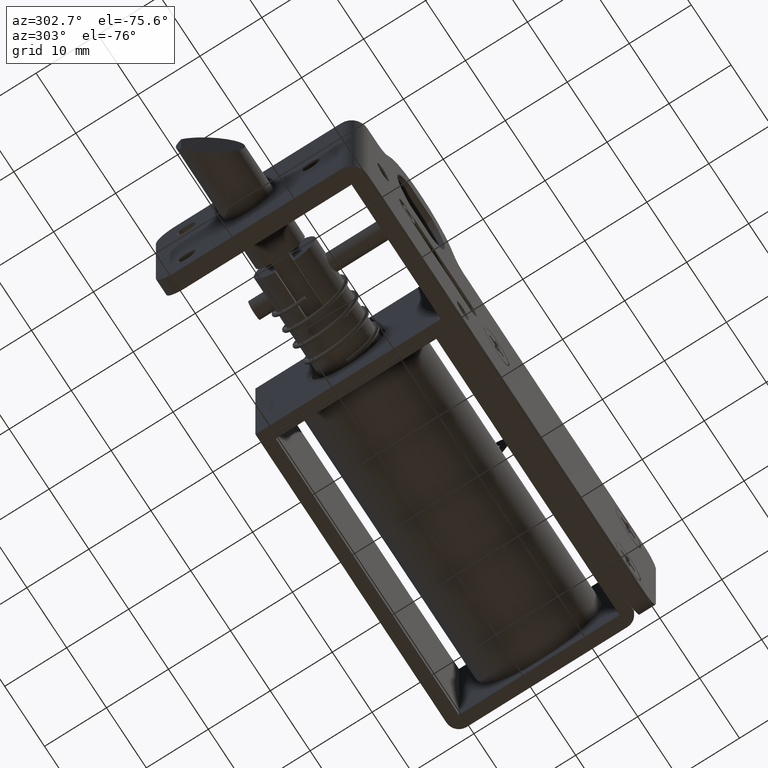
[diagram: clean part render]
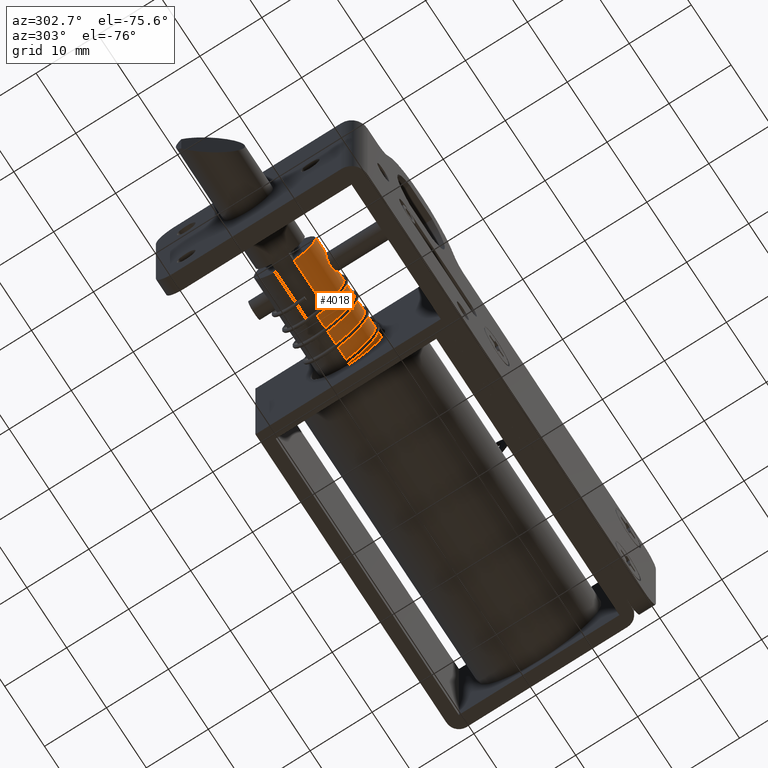
[diagram: same view with one face highlighted and labeled with its STEP entity id]
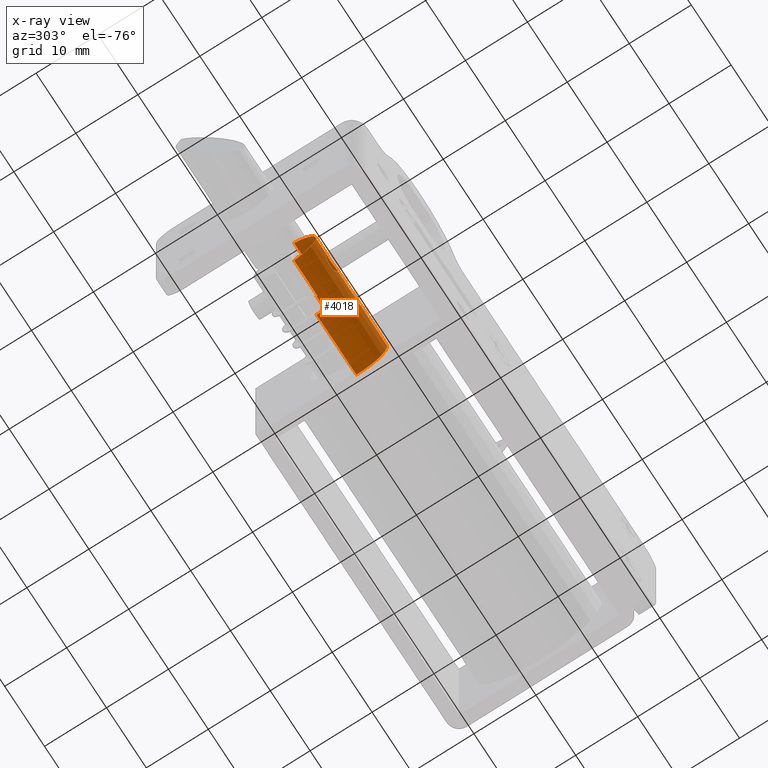
[diagram: x-ray of the same camera — body ghosted, the highlighted face saturated]
A machine part, auxiliary view. The second image highlights one B-rep face of the part: STEP entity #4018.
The next image is the same camera in x-ray: the body ghosted, the highlighted face saturated — about 0% of this face is hidden behind the body in this view.
In plain terms, the highlighted cylindrical surface (partial cylindrical patch) has radius 5 mm, axis along (-1, 0, 0).
Its self-contained STEP definition (entity closure, byte-faithful):
#37 = VERTEX_POINT ( 'NONE', #2849 ) ;
#132 = CARTESIAN_POINT ( 'NONE',  ( -2.802324645010769700, 12.72717619267082000, -9.509846374194445700 ) ) ;
#178 = CARTESIAN_POINT ( 'NONE',  ( -2.514256680765015500, 12.70647913015931600, -9.577431668028785000 ) ) ;
#205 = CARTESIAN_POINT ( 'NONE',  ( -1.690732575779523700, 12.55440806401950100, -11.75817743130402300 ) ) ;
#279 = CARTESIAN_POINT ( 'NONE',  ( -3.991137390126485500, 12.62888239010720600, -12.13014415608356500 ) ) ;
#310 = CARTESIAN_POINT ( 'NONE',  ( -3.992151302994307600, 12.62866936550598500, -9.870801423581568200 ) ) ;
#379 = FACE_OUTER_BOUND ( 'NONE', #7382, .T. ) ;
#390 = AXIS2_PLACEMENT_3D ( 'NONE', #5783, #2133, #6370 ) ;
#589 = FACE_BOUND ( 'NONE', #2037, .T. ) ;
#614 = VERTEX_POINT ( 'NONE', #3140 ) ;
#636 = ORIENTED_EDGE ( 'NONE', *, *, #7476, .F. ) ;
#674 = VECTOR ( 'NONE', #3603, 1000.000000000000000 ) ;
#713 = CIRCLE ( 'NONE', #390, 4.999999999999911200 ) ;
#799 = CARTESIAN_POINT ( 'NONE',  ( -2.246976668754406200, 12.67189170738311800, -9.699028046313298300 ) ) ;
#825 = CARTESIAN_POINT ( 'NONE',  ( -2.009140208749609500, 12.62893940461908400, -12.13039042158237800 ) ) ;
#875 = CARTESIAN_POINT ( 'NONE',  ( 11.00000000000019900, 17.50000000000000000, -6.000000000000089700 ) ) ;
#878 = CARTESIAN_POINT ( 'NONE',  ( -2.999999999999800200, 12.73030399291536900, -12.49999999999999800 ) ) ;
#905 = CARTESIAN_POINT ( 'NONE',  ( -4.308858590989895100, 12.55451991681598400, -11.75902394075570400 ) ) ;
#928 = CARTESIAN_POINT ( 'NONE',  ( -3.753093091205181400, 12.67188069730730100, -9.699068882200260000 ) ) ;
#993 = CARTESIAN_POINT ( 'NONE',  ( -2.999999999999800200, 12.73030399291536900, -12.49999999999999800 ) ) ;
#1171 = CARTESIAN_POINT ( 'NONE',  ( -6.999999999999800200, 17.50000000000000000, -11.00000000000000000 ) ) ;
#1204 = EDGE_CURVE ( 'NONE', #3364, #614, #3137, .T. ) ;
#1256 = LINE ( 'NONE', #2981, #674 ) ;
#1273 = CARTESIAN_POINT ( 'NONE',  ( 0.0000000000000000000, 16.00000000000000000, -15.76969600708459900 ) ) ;
#1397 = DIRECTION ( 'NONE',  ( -1.000000000000000000, 0.0000000000000000000, 0.0000000000000000000 ) ) ;
#1422 = CARTESIAN_POINT ( 'NONE',  ( -2.007860777104677900, 12.62867186551743800, -9.870790526265121700 ) ) ;
#1449 = CARTESIAN_POINT ( 'NONE',  ( -2.246337455217887900, 12.67178746337139600, -12.30057831424408300 ) ) ;
#1506 = CARTESIAN_POINT ( 'NONE',  ( -3.196470144910955800, 12.73030399291537100, -12.49999999999999600 ) ) ;
#1533 = CARTESIAN_POINT ( 'NONE',  ( -4.451482663955900400, 12.51437437587304300, -11.39091285004997400 ) ) ;
#1562 = CARTESIAN_POINT ( 'NONE',  ( -3.486443712107119900, 12.70640327214418600, -9.577689437620643200 ) ) ;
#1638 = CARTESIAN_POINT ( 'NONE',  ( 1.000000000000000000, 17.50000000000000000, -11.00000000000000000 ) ) ;
#1801 = DIRECTION ( 'NONE',  ( -1.000000000000000000, 0.0000000000000000000, 0.0000000000000000000 ) ) ;
#1826 = EDGE_CURVE ( 'NONE', #6294, #6401, #2491, .T. ) ;
#1870 = CIRCLE ( 'NONE', #3108, 4.999999999999911200 ) ;
#1922 = VERTEX_POINT ( 'NONE', #875 ) ;
#1990 = CARTESIAN_POINT ( 'NONE',  ( 11.00000000000019900, 17.50000000000000000, -15.99999999999990900 ) ) ;
#2032 = CARTESIAN_POINT ( 'NONE',  ( -1.690075773546870100, 12.55422281478710500, -10.24353476257498000 ) ) ;
#2037 = EDGE_LOOP ( 'NONE', ( #2313, #3725 ) ) ;
#2055 = CARTESIAN_POINT ( 'NONE',  ( -2.514925182668492600, 12.70654134009680900, -12.42277230654614300 ) ) ;
#2116 = LINE ( 'NONE', #5515, #3733 ) ;
#2133 = DIRECTION ( 'NONE',  ( -1.000000000000000000, -1.445602896647241800E-016, -0.0000000000000000000 ) ) ;
#2142 = CARTESIAN_POINT ( 'NONE',  ( -4.499994372585138800, 12.50000168822448500, -11.09894250604208600 ) ) ;
#2169 = CARTESIAN_POINT ( 'NONE',  ( -3.197779399950831300, 12.72717613401718900, -9.509845659352906800 ) ) ;
#2221 = CARTESIAN_POINT ( 'NONE',  ( -6.999999999999800200, 16.00000000000000000, -15.76969600708459900 ) ) ;
#2238 = VERTEX_POINT ( 'NONE', #7341 ) ;
#2243 = DIRECTION ( 'NONE',  ( -1.301042606982628500E-016, 1.000000000000000000, -6.938893903907351400E-015 ) ) ;
#2313 = ORIENTED_EDGE ( 'NONE', *, *, #1826, .T. ) ;
#2393 = CIRCLE ( 'NONE', #4872, 4.999999999999910300 ) ;
#2459 = DIRECTION ( 'NONE',  ( -1.000000000000000000, 0.0000000000000000000, 0.0000000000000000000 ) ) ;
#2491 = B_SPLINE_CURVE_WITH_KNOTS ( 'NONE', 3,
 ( #7462, #2605, #132, #3842, #178, #4466, #799, #5079, #1422, #5681, #2032, #6277, #2632, #6885, #3242, #7481, #3872, #205, #4485, #825, #5108, #1449, #5702, #2055, #6306, #2652, #6911, #3271 ),
 .UNSPECIFIED., .F., .F.,
 ( 4, 2, 2, 2, 2, 2, 2, 2, 2, 2, 2, 2, 2, 4 ),
 ( 6.732537572691845700E-018, 0.0002948077093299267800, 0.0005896154186598468500, 0.0008844231279897668600, 0.001179230837319687000, 0.001768846255979526800, 0.002358461674639367000, 0.002653269383969284100, 0.002948077093299202000, 0.003537692511959036200, 0.003832500221288954600, 0.004127307930618872100, 0.004422115639948790900, 0.004716923349278708000 ),
 .UNSPECIFIED. ) ;
#2605 = CARTESIAN_POINT ( 'NONE',  ( -2.900267691761287300, 12.73030399291532100, -9.500000000000000000 ) ) ;
#2632 = CARTESIAN_POINT ( 'NONE',  ( -1.500085950666919100, 12.50002578519800300, -10.80235854182423200 ) ) ;
#2652 = CARTESIAN_POINT ( 'NONE',  ( -2.802184690878885700, 12.72718262114432400, -12.49017666268368700 ) ) ;
#2737 = CARTESIAN_POINT ( 'NONE',  ( -4.490333163235194800, 12.50292544438446100, -10.80347954988823900 ) ) ;
#2762 = CARTESIAN_POINT ( 'NONE',  ( -2.999999999999805000, 12.73030399291536200, -9.500000000000000000 ) ) ;
#2849 = CARTESIAN_POINT ( 'NONE',  ( 1.000000000000000000, 17.50000000000000000, -15.99999999999990900 ) ) ;
#2917 = EDGE_CURVE ( 'NONE', #6214, #37, #2116, .T. ) ;
#2920 = ORIENTED_EDGE ( 'NONE', *, *, #2917, .F. ) ;
#2981 = CARTESIAN_POINT ( 'NONE',  ( 0.0000000000000000000, 17.50000000000000000, -6.000000000000089700 ) ) ;
#3108 = AXIS2_PLACEMENT_3D ( 'NONE', #1638, #5896, #2243 ) ;
#3137 = CIRCLE ( 'NONE', #3182, 4.999999999999910300 ) ;
#3140 = CARTESIAN_POINT ( 'NONE',  ( -6.999999999999800200, 16.00000000000000000, -6.230303992915390100 ) ) ;
#3182 = AXIS2_PLACEMENT_3D ( 'NONE', #1171, #1801, #6311 ) ;
#3242 = CARTESIAN_POINT ( 'NONE',  ( -1.509862000517188800, 12.50298377613940600, -11.19789410901895400 ) ) ;
#3271 = CARTESIAN_POINT ( 'NONE',  ( -2.999999999999800200, 12.73030399291536900, -12.49999999999999800 ) ) ;
#3280 = CARTESIAN_POINT ( 'NONE',  ( -2.999999999999805000, 12.73030399291536200, -9.500000000000000000 ) ) ;
#3328 = CARTESIAN_POINT ( 'NONE',  ( -3.666016759223066600, 12.68486501291667100, -12.34759170098981000 ) ) ;
#3356 = CARTESIAN_POINT ( 'NONE',  ( -4.422625083103120900, 12.52279593569752500, -10.51449484151709900 ) ) ;
#3364 = VERTEX_POINT ( 'NONE', #2221 ) ;
#3441 = CYLINDRICAL_SURFACE ( 'NONE', #6486, 4.999999999999910300 ) ;
#3603 = DIRECTION ( 'NONE',  ( -1.000000000000000000, 0.0000000000000000000, 0.0000000000000000000 ) ) ;
#3725 = ORIENTED_EDGE ( 'NONE', *, *, #7398, .T. ) ;
#3733 = VECTOR ( 'NONE', #2459, 1000.000000000000000 ) ;
#3840 = DIRECTION ( 'NONE',  ( 0.0000000000000000000, 0.0000000000000000000, 1.000000000000000000 ) ) ;
#3842 = CARTESIAN_POINT ( 'NONE',  ( -2.609830550698326100, 12.71533661068969100, -9.548310923336799800 ) ) ;
#3872 = CARTESIAN_POINT ( 'NONE',  ( -1.577002652769182100, 12.52269188692297100, -11.48459478034788700 ) ) ;
#3897 = EDGE_CURVE ( 'NONE', #7422, #3364, #6202, .T. ) ;
#3956 = CARTESIAN_POINT ( 'NONE',  ( -3.915992923339073800, 12.64380200355785500, -12.19184300574949700 ) ) ;
#3983 = CARTESIAN_POINT ( 'NONE',  ( -4.198362462741233300, 12.58389744185345500, -10.07710133819104400 ) ) ;
#3995 = EDGE_CURVE ( 'NONE', #6214, #1922, #2393, .T. ) ;
#4018 = ADVANCED_FACE ( 'NONE', ( #379, #589 ), #3441, .T. ) ;
#4058 = VECTOR ( 'NONE', #5544, 1000.000000000000000 ) ;
#4375 = ORIENTED_EDGE ( 'NONE', *, *, #1204, .F. ) ;
#4412 = VECTOR ( 'NONE', #7339, 1000.000000000000000 ) ;
#4466 = CARTESIAN_POINT ( 'NONE',  ( -2.332899524918945500, 12.68472027798280000, -9.652920125807128200 ) ) ;
#4485 = CARTESIAN_POINT ( 'NONE',  ( -1.801344953132834900, 12.58385448616421700, -11.92280474809496100 ) ) ;
#4490 = VERTEX_POINT ( 'NONE', #6931 ) ;
#4561 = ORIENTED_EDGE ( 'NONE', *, *, #3897, .F. ) ;
#4567 = CARTESIAN_POINT ( 'NONE',  ( -4.198815607608624500, 12.58381320185538900, -11.92258208171490200 ) ) ;
#4591 = CARTESIAN_POINT ( 'NONE',  ( -3.915690308566993400, 12.64386207586559700, -9.807908461536165100 ) ) ;
#4776 = EDGE_CURVE ( 'NONE', #1922, #2238, #1256, .T. ) ;
#4872 = AXIS2_PLACEMENT_3D ( 'NONE', #5049, #1397, #5653 ) ;
#5049 = CARTESIAN_POINT ( 'NONE',  ( 11.00000000000019900, 17.50000000000000000, -11.00000000000000000 ) ) ;
#5079 = CARTESIAN_POINT ( 'NONE',  ( -2.084363975566069000, 12.64387244019715200, -9.807866269062698100 ) ) ;
#5108 = CARTESIAN_POINT ( 'NONE',  ( -2.084275233990831900, 12.64385122607094500, -12.19203998918112900 ) ) ;
#5122 = ORIENTED_EDGE ( 'NONE', *, *, #3995, .T. ) ;
#5189 = CARTESIAN_POINT ( 'NONE',  ( -4.422972667660735300, 12.52269984596068900, -11.48472242113620300 ) ) ;
#5213 = CARTESIAN_POINT ( 'NONE',  ( -3.667283543983094900, 12.68469010007329900, -9.653030255412646800 ) ) ;
#5515 = CARTESIAN_POINT ( 'NONE',  ( 0.0000000000000000000, 17.50000000000000000, -15.99999999999990900 ) ) ;
#5544 = DIRECTION ( 'NONE',  ( 1.000000000000000000, -0.0000000000000000000, -0.0000000000000000000 ) ) ;
#5653 = DIRECTION ( 'NONE',  ( 0.0000000000000000000, 0.0000000000000000000, 1.000000000000000000 ) ) ;
#5669 = LINE ( 'NONE', #7334, #4058 ) ;
#5680 = CARTESIAN_POINT ( 'NONE',  ( 0.0000000000000000000, 17.50000000000000000, -11.00000000000000000 ) ) ;
#5681 = CARTESIAN_POINT ( 'NONE',  ( -1.801640853751079700, 12.58389840745956300, -10.07709564454369500 ) ) ;
#5702 = CARTESIAN_POINT ( 'NONE',  ( -2.334161751431527200, 12.68488952161549200, -12.34767876047193600 ) ) ;
#5783 = CARTESIAN_POINT ( 'NONE',  ( 1.000000000000000000, 17.50000000000000000, -11.00000000000000000 ) ) ;
#5791 = CARTESIAN_POINT ( 'NONE',  ( -4.490020864600686500, 12.50301859948106300, -11.19862679364406200 ) ) ;
#5812 = CARTESIAN_POINT ( 'NONE',  ( -3.390697093062331000, 12.71529779576852300, -9.548437933994259600 ) ) ;
#5896 = DIRECTION ( 'NONE',  ( -1.000000000000000000, -1.445602896647241800E-016, -0.0000000000000000000 ) ) ;
#6168 = ORIENTED_EDGE ( 'NONE', *, *, #7003, .F. ) ;
#6202 = LINE ( 'NONE', #1273, #4412 ) ;
#6214 = VERTEX_POINT ( 'NONE', #1990 ) ;
#6277 = CARTESIAN_POINT ( 'NONE',  ( -1.540048559907124300, 12.51238847802349600, -10.60416805705940900 ) ) ;
#6294 = VERTEX_POINT ( 'NONE', #3280 ) ;
#6306 = CARTESIAN_POINT ( 'NONE',  ( -2.608475295080447100, 12.71523810101836500, -12.45136686884036700 ) ) ;
#6311 = DIRECTION ( 'NONE',  ( 0.0000000000000000000, 0.0000000000000000000, 1.000000000000000000 ) ) ;
#6370 = DIRECTION ( 'NONE',  ( -1.301042606982628500E-016, 1.000000000000000000, 0.0000000000000000000 ) ) ;
#6386 = CARTESIAN_POINT ( 'NONE',  ( -4.500005622558022700, 12.49999831323262200, -10.90122819439086000 ) ) ;
#6401 = VERTEX_POINT ( 'NONE', #993 ) ;
#6416 = CARTESIAN_POINT ( 'NONE',  ( -3.099704968011459900, 12.73030399291531900, -9.500000000000000000 ) ) ;
#6486 = AXIS2_PLACEMENT_3D ( 'NONE', #5680, #6884, #3840 ) ;
#6630 = ORIENTED_EDGE ( 'NONE', *, *, #6790, .F. ) ;
#6790 = EDGE_CURVE ( 'NONE', #614, #4490, #5669, .T. ) ;
#6884 = DIRECTION ( 'NONE',  ( -1.000000000000000000, 0.0000000000000000000, 0.0000000000000000000 ) ) ;
#6885 = CARTESIAN_POINT ( 'NONE',  ( -1.499957238133772200, 12.49998717144139300, -11.09784062508662900 ) ) ;
#6911 = CARTESIAN_POINT ( 'NONE',  ( -2.901737990379308100, 12.73030399291536900, -12.49999999999999800 ) ) ;
#6931 = CARTESIAN_POINT ( 'NONE',  ( 1.000000000000000000, 16.00000000000000000, -6.230303992915350100 ) ) ;
#6966 = CARTESIAN_POINT ( 'NONE',  ( -3.394841420788036000, 12.71735572840258800, -12.46028323177438900 ) ) ;
#7000 = CARTESIAN_POINT ( 'NONE',  ( -4.451807695128327000, 12.51427971496842100, -10.61016972780844500 ) ) ;
#7003 = EDGE_CURVE ( 'NONE', #37, #7422, #713, .T. ) ;
#7088 = ORIENTED_EDGE ( 'NONE', *, *, #4776, .T. ) ;
#7110 = B_SPLINE_CURVE_WITH_KNOTS ( 'NONE', 3,
 ( #878, #1506, #6966, #3328, #7561, #3956, #279, #4567, #905, #5189, #1533, #5791, #2142, #6386, #2737, #7000, #3356, #7585, #3983, #310, #4591, #928, #5213, #1562, #5812, #2169, #6416, #2762 ),
 .UNSPECIFIED., .F., .F.,
 ( 4, 2, 2, 2, 2, 2, 2, 2, 2, 2, 2, 2, 2, 4 ),
 ( 0.004716923349278708000, 0.005306377133062267900, 0.005601104024954047500, 0.005895830916845827900, 0.006485284700629390500, 0.006780011592521171700, 0.007074738484412953000, 0.007369465376304735200, 0.007664192268196516400, 0.008253646051980079900, 0.008548372943871859400, 0.008843099835763638900, 0.009137826727655416800, 0.009432553619547198000 ),
 .UNSPECIFIED. ) ;
#7334 = CARTESIAN_POINT ( 'NONE',  ( 0.0000000000000000000, 16.00000000000000000, -6.230303992915390100 ) ) ;
#7339 = DIRECTION ( 'NONE',  ( -1.000000000000000000, 0.0000000000000000000, 0.0000000000000000000 ) ) ;
#7341 = CARTESIAN_POINT ( 'NONE',  ( 1.000000000000000000, 17.50000000000000000, -6.000000000000089700 ) ) ;
#7382 = EDGE_LOOP ( 'NONE', ( #2920, #5122, #7088, #636, #6630, #4375, #4561, #6168 ) ) ;
#7398 = EDGE_CURVE ( 'NONE', #6401, #6294, #7110, .T. ) ;
#7422 = VERTEX_POINT ( 'NONE', #7613 ) ;
#7462 = CARTESIAN_POINT ( 'NONE',  ( -2.999999999999805000, 12.73030399291536200, -9.500000000000000000 ) ) ;
#7476 = EDGE_CURVE ( 'NONE', #4490, #2238, #1870, .T. ) ;
#7481 = CARTESIAN_POINT ( 'NONE',  ( -1.548460375580552600, 12.51435789839632300, -11.39077622065227800 ) ) ;
#7561 = CARTESIAN_POINT ( 'NONE',  ( -3.753762821629111500, 12.67177316851085300, -12.30052850591251500 ) ) ;
#7585 = CARTESIAN_POINT ( 'NONE',  ( -4.309911087046761400, 12.55422809477543200, -10.24340070844310400 ) ) ;
#7613 = CARTESIAN_POINT ( 'NONE',  ( 1.000000000000000000, 16.00000000000000000, -15.76969600708459900 ) ) ;